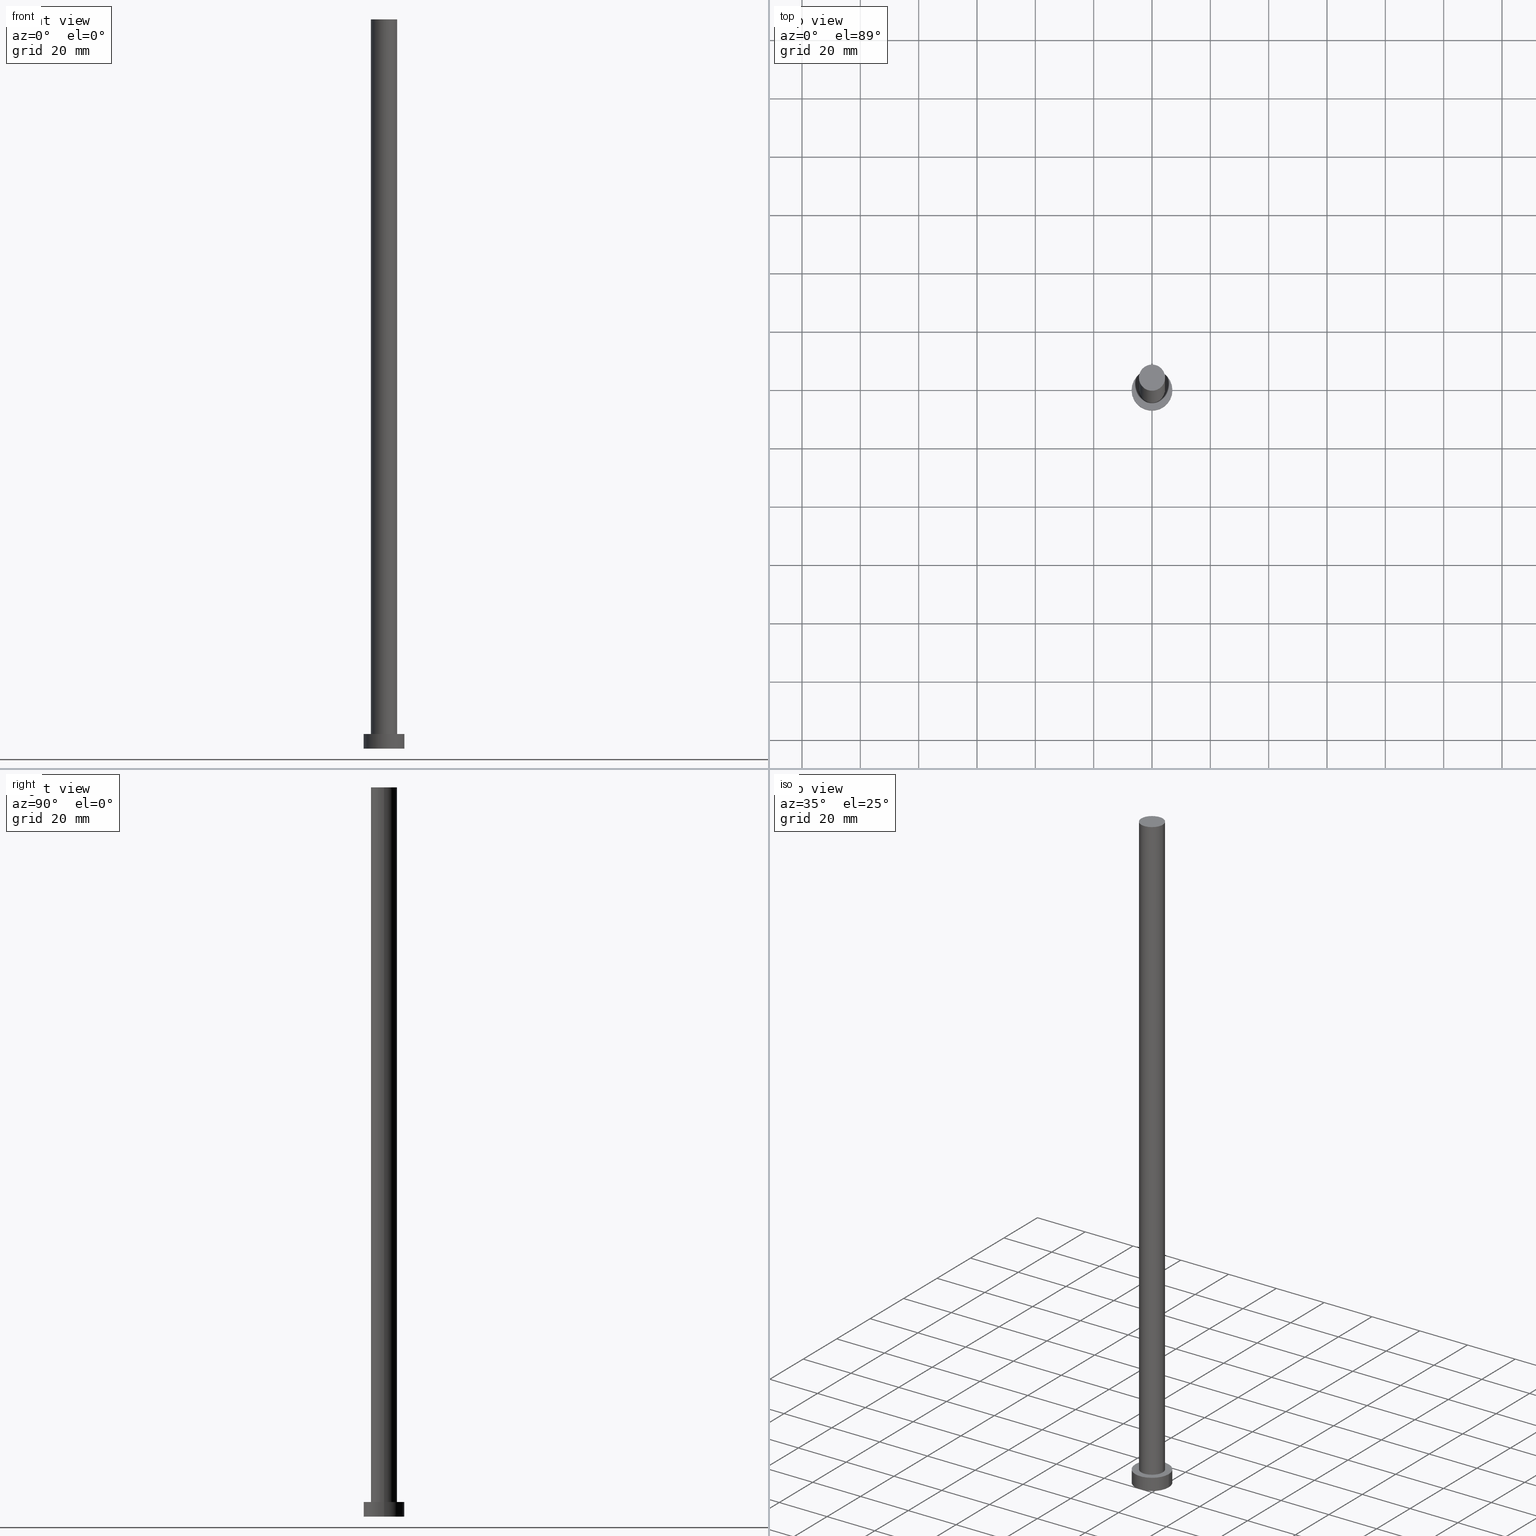
[diagram: canonical four-view strip — front | top / right | iso, engineering-drawing reading convention]
A machine part, canonical four-view strip (front | top / right | iso — engineering-drawing reading convention). The complete STEP part file that produces these views, byte-faithful:
ISO-10303-21;
HEADER;
FILE_DESCRIPTION (( 'STEP AP203' ),
    '1' );
FILE_NAME ('ff25.STEP',
    '2023-02-13T12:08:28',
    ( '' ),
    ( '' ),
    'SwSTEP 2.0',
    'SolidWorks 2019',
    '' );
FILE_SCHEMA (( 'CONFIG_CONTROL_DESIGN' ));
ENDSEC;

DATA;
#1 = APPROVAL_PERSON_ORGANIZATION ( #84, #130, #64 ) ;
#2 = AXIS2_PLACEMENT_3D ( 'NONE', #137, #24, #225 ) ;
#3 = DIRECTION ( 'NONE',  ( -1.000000000000000000, 0.000000000000000000, 0.000000000000000000 ) ) ;
#4 = SECURITY_CLASSIFICATION ( '', '', #151 ) ;
#5 = DIRECTION ( 'NONE',  ( -0.000000000000000000, -0.000000000000000000, -1.000000000000000000 ) ) ;
#6 = ORIENTED_EDGE ( 'NONE', *, *, #216, .F. ) ;
#7 = EDGE_CURVE ( 'NONE', #127, #232, #157, .T. ) ;
#8 = PERSON_AND_ORGANIZATION_ROLE ( 'design_owner' ) ;
#9 = ORIENTED_EDGE ( 'NONE', *, *, #89, .T. ) ;
#10 = COORDINATED_UNIVERSAL_TIME_OFFSET ( 1, 0, .AHEAD. ) ;
#11 = EDGE_LOOP ( 'NONE', ( #233, #213, #194, #241 ) ) ;
#12 = FACE_OUTER_BOUND ( 'NONE', #143, .T. ) ;
#13 = VERTEX_POINT ( 'NONE', #85 ) ;
#14 = DATE_AND_TIME ( #148, #159 ) ;
#15 = PERSON_AND_ORGANIZATION ( #129, #133 ) ;
#16 = LINE ( 'NONE', #201, #182 ) ;
#17 = LINE ( 'NONE', #255, #112 ) ;
#18 = CC_DESIGN_PERSON_AND_ORGANIZATION_ASSIGNMENT ( #121, #8, ( #72 ) ) ;
#19 = DIRECTION ( 'NONE',  ( -0.000000000000000000, -0.000000000000000000, -1.000000000000000000 ) ) ;
#20 =( LENGTH_UNIT ( ) NAMED_UNIT ( * ) SI_UNIT ( .MILLI., .METRE. ) );
#21 = CC_DESIGN_APPROVAL ( #130, ( #176 ) ) ;
#22 = CIRCLE ( 'NONE', #171, 4.500000000000000888 ) ;
#23 = MECHANICAL_CONTEXT ( 'NONE', #99, 'mechanical' ) ;
#24 = DIRECTION ( 'NONE',  ( 0.000000000000000000, 0.000000000000000000, 1.000000000000000000 ) ) ;
#25 = CALENDAR_DATE ( 2023, 13, 2 ) ;
#26 = CARTESIAN_POINT ( 'NONE',  ( -7.000000000000000000, 0.000000000000000000, 5.000000000000000000 ) ) ;
#27 = ADVANCED_FACE ( 'NONE', ( #44 ), #122, .F. ) ;
#28 = CYLINDRICAL_SURFACE ( 'NONE', #45, 4.500000000000000888 ) ;
#29 = ORIENTED_EDGE ( 'NONE', *, *, #219, .T. ) ;
#30 = AXIS2_PLACEMENT_3D ( 'NONE', #244, #206, #243 ) ;
#31 = ORIENTED_EDGE ( 'NONE', *, *, #80, .T. ) ;
#32 = PRODUCT_DEFINITION_SHAPE ( 'NONE', 'NONE',  #176 ) ;
#33 = ORIENTED_EDGE ( 'NONE', *, *, #224, .F. ) ;
#34 = APPROVAL ( #37, 'NEUR�EN�' ) ;
#35 = APPROVAL_STATUS ( 'not_yet_approved' ) ;
#36 = ADVANCED_BREP_SHAPE_REPRESENTATION ( 'ff25', ( #57, #178 ), #227 ) ;
#37 = APPROVAL_STATUS ( 'not_yet_approved' ) ;
#38 = DIRECTION ( 'NONE',  ( 1.000000000000000000, 0.000000000000000000, 0.000000000000000000 ) ) ;
#39 = CARTESIAN_POINT ( 'NONE',  ( 4.500000000000000888, 5.510910596163089556E-16, 250.0000000000000000 ) ) ;
#40 = UNCERTAINTY_MEASURE_WITH_UNIT (LENGTH_MEASURE( 1.000000000000000082E-05 ), #20, 'distance_accuracy_value', 'NONE');
#41 = CARTESIAN_POINT ( 'NONE',  ( 0.000000000000000000, 0.000000000000000000, 250.0000000000000000 ) ) ;
#42 = CARTESIAN_POINT ( 'NONE',  ( -4.500000000000000888, 0.000000000000000000, 5.000000000000000000 ) ) ;
#43 = CIRCLE ( 'NONE', #175, 7.000000000000000000 ) ;
#44 = FACE_OUTER_BOUND ( 'NONE', #193, .T. ) ;
#45 = AXIS2_PLACEMENT_3D ( 'NONE', #231, #50, #3 ) ;
#46 = DIRECTION ( 'NONE',  ( 0.000000000000000000, 0.000000000000000000, 1.000000000000000000 ) ) ;
#47 = EDGE_LOOP ( 'NONE', ( #145, #62 ) ) ;
#48 = APPROVAL_DATE_TIME ( #186, #130 ) ;
#49 = CARTESIAN_POINT ( 'NONE',  ( 0.000000000000000000, 0.000000000000000000, 5.000000000000000000 ) ) ;
#50 = DIRECTION ( 'NONE',  ( -0.000000000000000000, -0.000000000000000000, -1.000000000000000000 ) ) ;
#51 = ORIENTED_EDGE ( 'NONE', *, *, #216, .T. ) ;
#52 = ORIENTED_EDGE ( 'NONE', *, *, #55, .T. ) ;
#53 = CARTESIAN_POINT ( 'NONE',  ( 0.000000000000000000, 0.000000000000000000, 5.000000000000000000 ) ) ;
#54 = PERSON_AND_ORGANIZATION_ROLE ( 'classification_officer' ) ;
#55 = EDGE_CURVE ( 'NONE', #13, #128, #187, .T. ) ;
#56 = COORDINATED_UNIVERSAL_TIME_OFFSET ( 1, 0, .AHEAD. ) ;
#57 = MANIFOLD_SOLID_BREP ( 'P�idat vysunut�m3', #153 ) ;
#58 = CARTESIAN_POINT ( 'NONE',  ( 0.000000000000000000, 0.000000000000000000, 0.000000000000000000 ) ) ;
#59 = AXIS2_PLACEMENT_3D ( 'NONE', #144, #226, #180 ) ;
#60 = VECTOR ( 'NONE', #87, 1000.000000000000000 ) ;
#61 = FACE_OUTER_BOUND ( 'NONE', #184, .T. ) ;
#62 = ORIENTED_EDGE ( 'NONE', *, *, #7, .T. ) ;
#63 = CC_DESIGN_PERSON_AND_ORGANIZATION_ASSIGNMENT ( #245, #196, ( #170 ) ) ;
#64 = APPROVAL_ROLE ( '' ) ;
#65 = EDGE_LOOP ( 'NONE', ( #81, #141 ) ) ;
#66 = CARTESIAN_POINT ( 'NONE',  ( 4.500000000000000888, 5.510910596163089556E-16, 250.0000000000000000 ) ) ;
#67 = CYLINDRICAL_SURFACE ( 'NONE', #59, 7.000000000000000000 ) ;
#68 = ORIENTED_EDGE ( 'NONE', *, *, #89, .F. ) ;
#69 = EDGE_CURVE ( 'NONE', #127, #104, #166, .T. ) ;
#70 = CARTESIAN_POINT ( 'NONE',  ( 0.000000000000000000, 0.000000000000000000, 0.000000000000000000 ) ) ;
#71 = VERTEX_POINT ( 'NONE', #230 ) ;
#72 = PRODUCT ( 'ff25', 'ff25', '', ( #23 ) ) ;
#73 = AXIS2_PLACEMENT_3D ( 'NONE', #223, #98, #95 ) ;
#74 = APPROVAL_ROLE ( '' ) ;
#75 = FACE_OUTER_BOUND ( 'NONE', #188, .T. ) ;
#76 = APPROVAL_DATE_TIME ( #195, #34 ) ;
#77 = DATE_TIME_ROLE ( 'classification_date' ) ;
#78 = DIRECTION ( 'NONE',  ( 1.000000000000000000, 0.000000000000000000, 0.000000000000000000 ) ) ;
#79 = CIRCLE ( 'NONE', #247, 7.000000000000000000 ) ;
#80 = EDGE_CURVE ( 'NONE', #104, #123, #102, .T. ) ;
#81 = ORIENTED_EDGE ( 'NONE', *, *, #101, .F. ) ;
#82 = APPROVAL_PERSON_ORGANIZATION ( #15, #34, #131 ) ;
#83 = CC_DESIGN_PERSON_AND_ORGANIZATION_ASSIGNMENT ( #124, #210, ( #176 ) ) ;
#84 = PERSON_AND_ORGANIZATION ( #129, #133 ) ;
#85 = CARTESIAN_POINT ( 'NONE',  ( -7.000000000000000000, 0.000000000000000000, 5.000000000000000000 ) ) ;
#86 = APPLICATION_PROTOCOL_DEFINITION ( 'international standard', 'config_control_design', 1994, #99 ) ;
#87 = DIRECTION ( 'NONE',  ( -0.000000000000000000, -0.000000000000000000, -1.000000000000000000 ) ) ;
#88 = AXIS2_PLACEMENT_3D ( 'NONE', #212, #46, #120 ) ;
#89 = EDGE_CURVE ( 'NONE', #128, #111, #43, .T. ) ;
#90 = CC_DESIGN_APPROVAL ( #191, ( #170 ) ) ;
#91 = ORIENTED_EDGE ( 'NONE', *, *, #114, .F. ) ;
#92 = PERSON_AND_ORGANIZATION ( #129, #133 ) ;
#93 = DATE_AND_TIME ( #132, #149 ) ;
#94 = DIRECTION ( 'NONE',  ( 1.000000000000000000, 0.000000000000000000, 0.000000000000000000 ) ) ;
#95 = DIRECTION ( 'NONE',  ( 1.000000000000000000, 0.000000000000000000, -0.000000000000000000 ) ) ;
#96 = ADVANCED_FACE ( 'NONE', ( #246, #75 ), #150, .T. ) ;
#97 = CIRCLE ( 'NONE', #88, 7.000000000000000000 ) ;
#98 = DIRECTION ( 'NONE',  ( 0.000000000000000000, 0.000000000000000000, 1.000000000000000000 ) ) ;
#99 = APPLICATION_CONTEXT ( 'configuration controlled 3d designs of mechanical parts and assemblies' ) ;
#100 = FACE_OUTER_BOUND ( 'NONE', #209, .T. ) ;
#101 = EDGE_CURVE ( 'NONE', #123, #104, #248, .T. ) ;
#102 = CIRCLE ( 'NONE', #117, 4.500000000000000888 ) ;
#103 =( NAMED_UNIT ( * ) SI_UNIT ( $, .STERADIAN. ) SOLID_ANGLE_UNIT ( ) );
#104 = VERTEX_POINT ( 'NONE', #134 ) ;
#105 = CYLINDRICAL_SURFACE ( 'NONE', #146, 7.000000000000000000 ) ;
#106 = ORIENTED_EDGE ( 'NONE', *, *, #147, .T. ) ;
#107 = CARTESIAN_POINT ( 'NONE',  ( -4.500000000000000888, 0.000000000000000000, 250.0000000000000000 ) ) ;
#108 = ORIENTED_EDGE ( 'NONE', *, *, #224, .T. ) ;
#109 = DIRECTION ( 'NONE',  ( -1.000000000000000000, 0.000000000000000000, 0.000000000000000000 ) ) ;
#110 = ORIENTED_EDGE ( 'NONE', *, *, #55, .F. ) ;
#111 = VERTEX_POINT ( 'NONE', #198 ) ;
#112 = VECTOR ( 'NONE', #179, 1000.000000000000000 ) ;
#113 = COORDINATED_UNIVERSAL_TIME_OFFSET ( 1, 0, .AHEAD. ) ;
#114 = EDGE_CURVE ( 'NONE', #232, #123, #16, .T. ) ;
#115 = DIRECTION ( 'NONE',  ( -0.000000000000000000, -0.000000000000000000, -1.000000000000000000 ) ) ;
#116 = CC_DESIGN_DATE_AND_TIME_ASSIGNMENT ( #142, #252, ( #176 ) ) ;
#117 = AXIS2_PLACEMENT_3D ( 'NONE', #49, #239, #38 ) ;
#118 = AXIS2_PLACEMENT_3D ( 'NONE', #70, #165, #140 ) ;
#119 = PRODUCT_RELATED_PRODUCT_CATEGORY ( 'detail', '', ( #72 ) ) ;
#120 = DIRECTION ( 'NONE',  ( 1.000000000000000000, 0.000000000000000000, 0.000000000000000000 ) ) ;
#121 = PERSON_AND_ORGANIZATION ( #129, #133 ) ;
#122 = PLANE ( 'NONE',  #30 ) ;
#123 = VERTEX_POINT ( 'NONE', #42 ) ;
#124 = PERSON_AND_ORGANIZATION ( #129, #133 ) ;
#125 = ORIENTED_EDGE ( 'NONE', *, *, #7, .F. ) ;
#126 = DIRECTION ( 'NONE',  ( 0.000000000000000000, 0.000000000000000000, 1.000000000000000000 ) ) ;
#127 = VERTEX_POINT ( 'NONE', #39 ) ;
#128 = VERTEX_POINT ( 'NONE', #200 ) ;
#129 = PERSON ( 'NEUR�EN�', 'NEUR�EN�', 'NEUR�EN�', ('NEUR�EN�'), ('NEUR�EN�'), ('NEUR�EN�') ) ;
#130 = APPROVAL ( #242, 'NEUR�EN�' ) ;
#131 = APPROVAL_ROLE ( '' ) ;
#132 = CALENDAR_DATE ( 2023, 13, 2 ) ;
#133 = ORGANIZATION ( 'NEUR�EN�', 'NEUR�EN�', '' ) ;
#134 = CARTESIAN_POINT ( 'NONE',  ( 4.500000000000000888, 5.510910596163089556E-16, 5.000000000000000000 ) ) ;
#135 = DIRECTION ( 'NONE',  ( 0.000000000000000000, 0.000000000000000000, 1.000000000000000000 ) ) ;
#136 = CC_DESIGN_PERSON_AND_ORGANIZATION_ASSIGNMENT ( #173, #154, ( #170 ) ) ;
#137 = CARTESIAN_POINT ( 'NONE',  ( 0.000000000000000000, 0.000000000000000000, 250.0000000000000000 ) ) ;
#138 = COORDINATED_UNIVERSAL_TIME_OFFSET ( 1, 0, .AHEAD. ) ;
#139 = AXIS2_PLACEMENT_3D ( 'NONE', #41, #115, #199 ) ;
#140 = DIRECTION ( 'NONE',  ( 1.000000000000000000, 0.000000000000000000, 0.000000000000000000 ) ) ;
#141 = ORIENTED_EDGE ( 'NONE', *, *, #80, .F. ) ;
#142 = DATE_AND_TIME ( #167, #220 ) ;
#143 = EDGE_LOOP ( 'NONE', ( #33, #106, #29, #110 ) ) ;
#144 = CARTESIAN_POINT ( 'NONE',  ( 0.000000000000000000, 0.000000000000000000, 5.000000000000000000 ) ) ;
#145 = ORIENTED_EDGE ( 'NONE', *, *, #164, .T. ) ;
#146 = AXIS2_PLACEMENT_3D ( 'NONE', #208, #5, #109 ) ;
#147 = EDGE_CURVE ( 'NONE', #71, #111, #17, .T. ) ;
#148 = CALENDAR_DATE ( 2023, 13, 2 ) ;
#149 = LOCAL_TIME ( 13, 8, 28.00000000000000000, #174 ) ;
#150 = PLANE ( 'NONE',  #177 ) ;
#151 = SECURITY_CLASSIFICATION_LEVEL ( 'unclassified' ) ;
#152 = CARTESIAN_POINT ( 'NONE',  ( 0.000000000000000000, 0.000000000000000000, 5.000000000000000000 ) ) ;
#153 = CLOSED_SHELL ( 'NONE', ( #222, #207, #249, #96, #27, #185, #160 ) ) ;
#154 = PERSON_AND_ORGANIZATION_ROLE ( 'design_supplier' ) ;
#155 = LOCAL_TIME ( 13, 8, 28.00000000000000000, #56 ) ;
#156 = FACE_OUTER_BOUND ( 'NONE', #11, .T. ) ;
#157 = CIRCLE ( 'NONE', #2, 4.500000000000000888 ) ;
#158 = CIRCLE ( 'NONE', #118, 7.000000000000000000 ) ;
#159 = LOCAL_TIME ( 13, 8, 28.00000000000000000, #113 ) ;
#160 = ADVANCED_FACE ( 'NONE', ( #254 ), #161, .T. ) ;
#161 = PLANE ( 'NONE',  #73 ) ;
#162 = CARTESIAN_POINT ( 'NONE',  ( 0.000000000000000000, 0.000000000000000000, 5.000000000000000000 ) ) ;
#163 = DIRECTION ( 'NONE',  ( 1.000000000000000000, 0.000000000000000000, 0.000000000000000000 ) ) ;
#164 = EDGE_CURVE ( 'NONE', #232, #127, #22, .T. ) ;
#165 = DIRECTION ( 'NONE',  ( 0.000000000000000000, 0.000000000000000000, 1.000000000000000000 ) ) ;
#166 = LINE ( 'NONE', #66, #253 ) ;
#167 = CALENDAR_DATE ( 2023, 13, 2 ) ;
#168 = ORIENTED_EDGE ( 'NONE', *, *, #147, .F. ) ;
#169 = ORIENTED_EDGE ( 'NONE', *, *, #69, .T. ) ;
#170 = PRODUCT_DEFINITION_FORMATION_WITH_SPECIFIED_SOURCE ( 'LIBOVOLN�', '', #72, .NOT_KNOWN. ) ;
#171 = AXIS2_PLACEMENT_3D ( 'NONE', #240, #135, #78 ) ;
#172 = CC_DESIGN_DATE_AND_TIME_ASSIGNMENT ( #14, #77, ( #4 ) ) ;
#173 = PERSON_AND_ORGANIZATION ( #129, #133 ) ;
#174 = COORDINATED_UNIVERSAL_TIME_OFFSET ( 1, 0, .AHEAD. ) ;
#175 = AXIS2_PLACEMENT_3D ( 'NONE', #58, #197, #94 ) ;
#176 = PRODUCT_DEFINITION ( 'NEZN�M�', '', #170, #218 ) ;
#177 = AXIS2_PLACEMENT_3D ( 'NONE', #53, #215, #251 ) ;
#178 = AXIS2_PLACEMENT_3D ( 'NONE', #203, #204, #190 ) ;
#179 = DIRECTION ( 'NONE',  ( -0.000000000000000000, -0.000000000000000000, -1.000000000000000000 ) ) ;
#180 = DIRECTION ( 'NONE',  ( -1.000000000000000000, 0.000000000000000000, 0.000000000000000000 ) ) ;
#181 = LOCAL_TIME ( 13, 8, 28.00000000000000000, #138 ) ;
#182 = VECTOR ( 'NONE', #19, 1000.000000000000000 ) ;
#183 =( NAMED_UNIT ( * ) PLANE_ANGLE_UNIT ( ) SI_UNIT ( $, .RADIAN. ) );
#184 = EDGE_LOOP ( 'NONE', ( #125, #169, #31, #91 ) ) ;
#185 = ADVANCED_FACE ( 'NONE', ( #156 ), #221, .T. ) ;
#186 = DATE_AND_TIME ( #25, #181 ) ;
#187 = LINE ( 'NONE', #26, #60 ) ;
#188 = EDGE_LOOP ( 'NONE', ( #51, #108 ) ) ;
#189 = AXIS2_PLACEMENT_3D ( 'NONE', #152, #236, #237 ) ;
#190 = DIRECTION ( 'NONE',  ( 1.000000000000000000, 0.000000000000000000, 0.000000000000000000 ) ) ;
#191 = APPROVAL ( #35, 'NEUR�EN�' ) ;
#192 = CC_DESIGN_SECURITY_CLASSIFICATION ( #4, ( #170 ) ) ;
#193 = EDGE_LOOP ( 'NONE', ( #68, #228 ) ) ;
#194 = ORIENTED_EDGE ( 'NONE', *, *, #114, .T. ) ;
#195 = DATE_AND_TIME ( #214, #155 ) ;
#196 = PERSON_AND_ORGANIZATION_ROLE ( 'creator' ) ;
#197 = DIRECTION ( 'NONE',  ( 0.000000000000000000, 0.000000000000000000, 1.000000000000000000 ) ) ;
#198 = CARTESIAN_POINT ( 'NONE',  ( 7.000000000000000000, 8.572527594031473190E-16, 0.000000000000000000 ) ) ;
#199 = DIRECTION ( 'NONE',  ( -1.000000000000000000, 0.000000000000000000, 0.000000000000000000 ) ) ;
#200 = CARTESIAN_POINT ( 'NONE',  ( -7.000000000000000000, 0.000000000000000000, 0.000000000000000000 ) ) ;
#201 = CARTESIAN_POINT ( 'NONE',  ( -4.500000000000000888, 0.000000000000000000, 250.0000000000000000 ) ) ;
#202 = APPLICATION_CONTEXT ( 'configuration controlled 3d designs of mechanical parts and assemblies' ) ;
#203 = CARTESIAN_POINT ( 'NONE',  ( 0.000000000000000000, 0.000000000000000000, 0.000000000000000000 ) ) ;
#204 = DIRECTION ( 'NONE',  ( 0.000000000000000000, 0.000000000000000000, 1.000000000000000000 ) ) ;
#205 = APPROVAL_PERSON_ORGANIZATION ( #217, #191, #74 ) ;
#206 = DIRECTION ( 'NONE',  ( 0.000000000000000000, 0.000000000000000000, 1.000000000000000000 ) ) ;
#207 = ADVANCED_FACE ( 'NONE', ( #12 ), #67, .T. ) ;
#208 = CARTESIAN_POINT ( 'NONE',  ( 0.000000000000000000, 0.000000000000000000, 5.000000000000000000 ) ) ;
#209 = EDGE_LOOP ( 'NONE', ( #168, #6, #52, #9 ) ) ;
#210 = PERSON_AND_ORGANIZATION_ROLE ( 'creator' ) ;
#211 = DIRECTION ( 'NONE',  ( -0.000000000000000000, -0.000000000000000000, -1.000000000000000000 ) ) ;
#212 = CARTESIAN_POINT ( 'NONE',  ( 0.000000000000000000, 0.000000000000000000, 5.000000000000000000 ) ) ;
#213 = ORIENTED_EDGE ( 'NONE', *, *, #164, .F. ) ;
#214 = CALENDAR_DATE ( 2023, 13, 2 ) ;
#215 = DIRECTION ( 'NONE',  ( 0.000000000000000000, 0.000000000000000000, 1.000000000000000000 ) ) ;
#216 = EDGE_CURVE ( 'NONE', #13, #71, #97, .T. ) ;
#217 = PERSON_AND_ORGANIZATION ( #129, #133 ) ;
#218 = DESIGN_CONTEXT ( 'detailed design', #202, 'design' ) ;
#219 = EDGE_CURVE ( 'NONE', #111, #128, #158, .T. ) ;
#220 = LOCAL_TIME ( 13, 8, 28.00000000000000000, #10 ) ;
#221 = CYLINDRICAL_SURFACE ( 'NONE', #139, 4.500000000000000888 ) ;
#222 = ADVANCED_FACE ( 'NONE', ( #61 ), #28, .T. ) ;
#223 = CARTESIAN_POINT ( 'NONE',  ( 0.000000000000000000, 0.000000000000000000, 250.0000000000000000 ) ) ;
#224 = EDGE_CURVE ( 'NONE', #71, #13, #79, .T. ) ;
#225 = DIRECTION ( 'NONE',  ( 1.000000000000000000, 0.000000000000000000, 0.000000000000000000 ) ) ;
#226 = DIRECTION ( 'NONE',  ( -0.000000000000000000, -0.000000000000000000, -1.000000000000000000 ) ) ;
#227 =( GEOMETRIC_REPRESENTATION_CONTEXT ( 3 ) GLOBAL_UNCERTAINTY_ASSIGNED_CONTEXT ( ( #40 ) ) GLOBAL_UNIT_ASSIGNED_CONTEXT ( ( #20, #183, #103 ) ) REPRESENTATION_CONTEXT ( 'NONE', 'WORKASPACE' ) );
#228 = ORIENTED_EDGE ( 'NONE', *, *, #219, .F. ) ;
#229 = APPLICATION_PROTOCOL_DEFINITION ( 'international standard', 'config_control_design', 1994, #202 ) ;
#230 = CARTESIAN_POINT ( 'NONE',  ( 7.000000000000000000, 8.572527594031473190E-16, 5.000000000000000000 ) ) ;
#231 = CARTESIAN_POINT ( 'NONE',  ( 0.000000000000000000, 0.000000000000000000, 250.0000000000000000 ) ) ;
#232 = VERTEX_POINT ( 'NONE', #107 ) ;
#233 = ORIENTED_EDGE ( 'NONE', *, *, #69, .F. ) ;
#234 = APPROVAL_DATE_TIME ( #93, #191 ) ;
#235 = CC_DESIGN_PERSON_AND_ORGANIZATION_ASSIGNMENT ( #92, #54, ( #4 ) ) ;
#236 = DIRECTION ( 'NONE',  ( 0.000000000000000000, 0.000000000000000000, 1.000000000000000000 ) ) ;
#237 = DIRECTION ( 'NONE',  ( 1.000000000000000000, 0.000000000000000000, 0.000000000000000000 ) ) ;
#238 = SHAPE_DEFINITION_REPRESENTATION ( #32, #36 ) ;
#239 = DIRECTION ( 'NONE',  ( 0.000000000000000000, 0.000000000000000000, 1.000000000000000000 ) ) ;
#240 = CARTESIAN_POINT ( 'NONE',  ( 0.000000000000000000, 0.000000000000000000, 250.0000000000000000 ) ) ;
#241 = ORIENTED_EDGE ( 'NONE', *, *, #101, .T. ) ;
#242 = APPROVAL_STATUS ( 'not_yet_approved' ) ;
#243 = DIRECTION ( 'NONE',  ( 1.000000000000000000, 0.000000000000000000, -0.000000000000000000 ) ) ;
#244 = CARTESIAN_POINT ( 'NONE',  ( 0.000000000000000000, 0.000000000000000000, 0.000000000000000000 ) ) ;
#245 = PERSON_AND_ORGANIZATION ( #129, #133 ) ;
#246 = FACE_BOUND ( 'NONE', #65, .T. ) ;
#247 = AXIS2_PLACEMENT_3D ( 'NONE', #162, #126, #163 ) ;
#248 = CIRCLE ( 'NONE', #189, 4.500000000000000888 ) ;
#249 = ADVANCED_FACE ( 'NONE', ( #100 ), #105, .T. ) ;
#250 = CC_DESIGN_APPROVAL ( #34, ( #4 ) ) ;
#251 = DIRECTION ( 'NONE',  ( 1.000000000000000000, 0.000000000000000000, -0.000000000000000000 ) ) ;
#252 = DATE_TIME_ROLE ( 'creation_date' ) ;
#253 = VECTOR ( 'NONE', #211, 1000.000000000000000 ) ;
#254 = FACE_OUTER_BOUND ( 'NONE', #47, .T. ) ;
#255 = CARTESIAN_POINT ( 'NONE',  ( 7.000000000000000000, 8.572527594031473190E-16, 5.000000000000000000 ) ) ;
ENDSEC;
END-ISO-10303-21;
